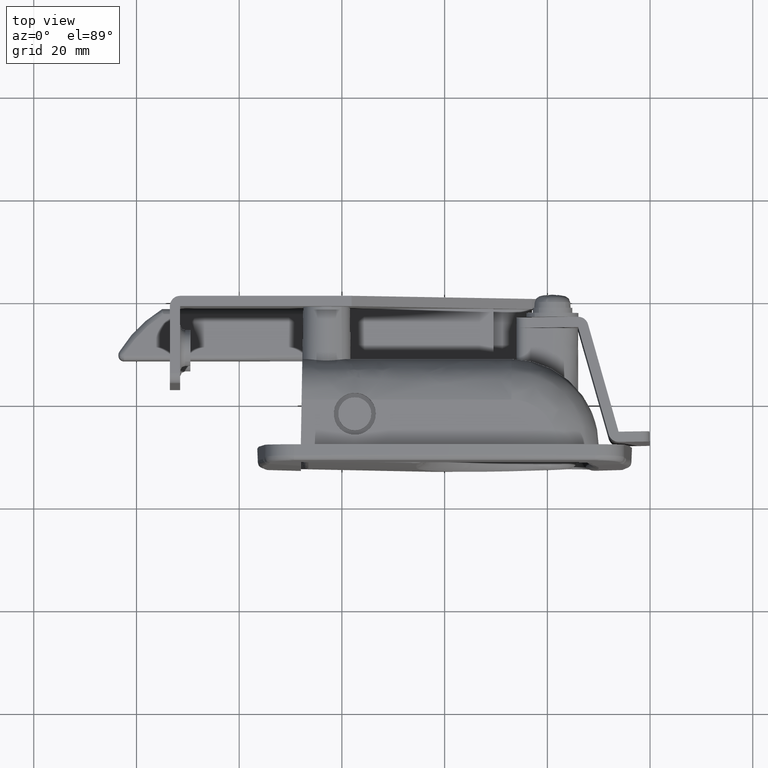
[diagram: clean part render]
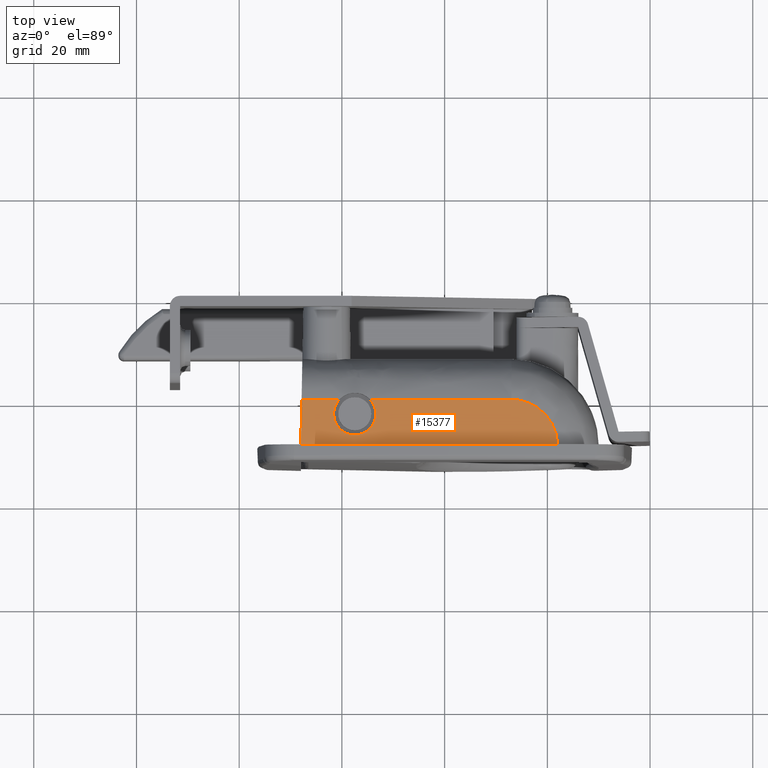
[diagram: same view with one face highlighted and labeled with its STEP entity id]
A machine part, top view. The second image highlights one B-rep face of the part: STEP entity #15377.
In plain terms, the highlighted face is a freeform B-spline surface patch.
Its self-contained STEP definition (entity closure, byte-faithful):
#6827=CARTESIAN_POINT('',(-20.326029361731511,-25.970447448892401,40.500200000000007));
#6828=VERTEX_POINT('',#6827);
#6834=CARTESIAN_POINT('',(-17.500002151720921,-27.099999999999440,40.500200000000000));
#6835=VERTEX_POINT('',#6834);
#6836=CARTESIAN_POINT('',(-17.500002151720921,-27.099999999999440,40.500200000000000));
#6837=CARTESIAN_POINT('',(-17.922265957206989,-27.100228568379201,40.500200000000198));
#6838=CARTESIAN_POINT('',(-18.620417617979410,-26.991112572591192,40.500199999999722));
#6839=CARTESIAN_POINT('',(-19.578508037157061,-26.574733155548870,40.500200000000333));
#6840=CARTESIAN_POINT('',(-20.079002488104621,-26.205574168201910,40.500199999999758));
#6841=CARTESIAN_POINT('',(-20.326029361731511,-25.970447448892401,40.500200000000007));
#6842=B_SPLINE_CURVE_WITH_KNOTS('',3,(#6836,#6837,#6838,#6839,#6840,#6841),.UNSPECIFIED.,.F.,.U.,(4,1,1,4),(0.000000031369566,1.266708007544761,2.094915085020616,3.118019090877381),.UNSPECIFIED.);
#6843=EDGE_CURVE('',#6835,#6828,#6842,.T.);
#6845=CARTESIAN_POINT('',(-14.505004173625521,-20.199999999999999,40.500200000000000));
#6846=VERTEX_POINT('',#6845);
#6847=CARTESIAN_POINT('',(-14.505004173625521,-20.199999999999999,40.500200000000000));
#6848=CARTESIAN_POINT('',(-14.284783077416010,-20.435436207263781,40.500200000000028));
#6849=CARTESIAN_POINT('',(-13.989136208284060,-20.837923815210281,40.500200000000000));
#6850=CARTESIAN_POINT('',(-13.663311704471450,-21.508389943553389,40.500199999999950));
#6851=CARTESIAN_POINT('',(-13.429115911695069,-22.270052519667750,40.500200000000092));
#6852=CARTESIAN_POINT('',(-13.368490080570361,-23.118837200554321,40.500199999999900));
#6853=CARTESIAN_POINT('',(-13.495630952483349,-23.980365566867739,40.500200000000312));
#6854=CARTESIAN_POINT('',(-13.720335066192829,-24.640989928963691,40.500199999999211));
#6855=CARTESIAN_POINT('',(-14.054255188366040,-25.251851624704361,40.500200000001072));
#6856=CARTESIAN_POINT('',(-14.448056419369770,-25.765082850201530,40.500199999998827));
#6857=CARTESIAN_POINT('',(-15.010793404145090,-26.292606951737870,40.500200000001492));
#6858=CARTESIAN_POINT('',(-15.669362839930020,-26.699442272363079,40.500199999999403));
#6859=CARTESIAN_POINT('',(-16.532951461362391,-27.018449465768882,40.500200000000277));
#6860=CARTESIAN_POINT('',(-17.128029962880230,-27.100106948618059,40.500199999999943));
#6861=CARTESIAN_POINT('',(-17.500002151720921,-27.099999999999440,40.500200000000000));
#6862=B_SPLINE_CURVE_WITH_KNOTS('',3,(#6847,#6848,#6849,#6850,#6851,#6852,#6853,#6854,#6855,#6856,#6857,#6858,#6859,#6860,#6861),.UNSPECIFIED.,.F.,.U.,(4,1,1,1,1,1,1,1,1,1,1,1,4),(0.000000122102445,0.967119125250209,1.487897052604674,2.231861406102832,3.347821474963162,4.017367441213487,4.835687376180398,5.430869252170472,6.100407406194471,6.769980215627577,7.737147280910370,8.406724187100361,9.522621303841754),.UNSPECIFIED.);
#6863=EDGE_CURVE('',#6846,#6835,#6862,.T.);
#6865=CARTESIAN_POINT('',(-20.494995826374449,-20.199999999999999,40.500200000000000));
#6866=VERTEX_POINT('',#6865);
#6903=CARTESIAN_POINT('',(-21.568398165385702,-23.508071223241739,40.500200000000007));
#6904=VERTEX_POINT('',#6903);
#6905=CARTESIAN_POINT('',(-21.568398165385702,-23.508071223241739,40.500200000000007));
#6906=CARTESIAN_POINT('',(-21.612554603408160,-23.155391518258661,40.500200000000092));
#6907=CARTESIAN_POINT('',(-21.608542895482170,-22.495145874601359,40.500199999999907));
#6908=CARTESIAN_POINT('',(-21.398301469278898,-21.655407231732500,40.500200000000142));
#6909=CARTESIAN_POINT('',(-21.046283830062009,-20.888126534100639,40.500199999999722));
#6910=CARTESIAN_POINT('',(-20.725020731173061,-20.445907883642288,40.500200000000262));
#6911=CARTESIAN_POINT('',(-20.494995826374449,-20.199999999999999,40.500200000000000));
#6912=B_SPLINE_CURVE_WITH_KNOTS('',3,(#6905,#6906,#6907,#6908,#6909,#6910,#6911),.UNSPECIFIED.,.F.,.U.,(4,1,1,1,4),(0.000000043603685,1.066270523485401,1.964172299174437,2.581484066441391,3.591632255522183),.UNSPECIFIED.);
#6913=EDGE_CURVE('',#6904,#6866,#6912,.T.);
#6947=CARTESIAN_POINT('',(-20.326029361731511,-25.970447448892401,40.500200000000007));
#6948=CARTESIAN_POINT('',(-20.602103974462530,-25.707986403872610,40.500200000000028));
#6949=CARTESIAN_POINT('',(-21.024999837250689,-25.174875217527362,40.500200000000007));
#6950=CARTESIAN_POINT('',(-21.413275508056870,-24.315493018282190,40.500199999999992));
#6951=CARTESIAN_POINT('',(-21.535743198067440,-23.769749830687271,40.500200000000049));
#6952=CARTESIAN_POINT('',(-21.568398165385702,-23.508071223241739,40.500200000000007));
#6953=B_SPLINE_CURVE_WITH_KNOTS('',3,(#6947,#6948,#6949,#6950,#6951,#6952),.UNSPECIFIED.,.F.,.U.,(4,1,1,4),(0.000000012296932,1.142755339688921,2.021797210257278,2.812935278260444),.UNSPECIFIED.);
#6954=EDGE_CURVE('',#6828,#6904,#6953,.T.);
#14302=CARTESIAN_POINT('',(21.999715115965451,-28.997212692888301,40.500200000000000));
#14303=VERTEX_POINT('',#14302);
#14338=CARTESIAN_POINT('',(13.002000000000001,-20.199999999999999,40.500200000000000));
#14339=VERTEX_POINT('',#14338);
#14355=CARTESIAN_POINT('',(21.999715115965451,-28.997212692888301,40.500200000000000));
#14356=CARTESIAN_POINT('',(21.984328161287969,-28.307907163933081,40.500200000000042));
#14357=CARTESIAN_POINT('',(21.838952891975161,-27.258659969866411,40.500199999999943));
#14358=CARTESIAN_POINT('',(21.369022209164079,-25.805898751146270,40.500200000000071));
#14359=CARTESIAN_POINT('',(20.765001491500719,-24.561569035824711,40.500200000000000));
#14360=CARTESIAN_POINT('',(19.768268291173118,-23.168956665855870,40.500199999999872));
#14361=CARTESIAN_POINT('',(18.478094870518142,-21.981729476119000,40.500200000000227));
#14362=CARTESIAN_POINT('',(16.826863914358380,-20.982191482372809,40.500199999999587));
#14363=CARTESIAN_POINT('',(15.034090013911721,-20.350673141361430,40.500200000000227));
#14364=CARTESIAN_POINT('',(13.655167302522360,-20.199915723755790,40.500199999999928));
#14365=CARTESIAN_POINT('',(13.002000000000001,-20.199999999999999,40.500200000000000));
#14366=B_SPLINE_CURVE_WITH_KNOTS('',3,(#14355,#14356,#14357,#14358,#14359,#14360,#14361,#14362,#14363,#14364,#14365),.UNSPECIFIED.,.F.,.U.,(4,1,1,1,1,1,1,1,4),(0.000000068209710,2.068393113035912,3.157019429623679,4.572252575473460,6.205187828377694,8.273556860666481,9.797658171387049,11.974932727073419,13.934447413180781),.UNSPECIFIED.);
#14367=EDGE_CURVE('',#14303,#14339,#14366,.T.);
#14526=CARTESIAN_POINT('',(-14.360276684275300,-29.0,40.500200000000000));
#14527=VERTEX_POINT('',#14526);
#14565=CARTESIAN_POINT('',(-14.360276684275300,-29.0,40.500200000000000));
#14566=CARTESIAN_POINT('',(21.999715115965451,-28.997212692888301,40.500200000000000));
#14567=QUASI_UNIFORM_CURVE('',1,(#14565,#14566),.UNSPECIFIED.,.F.,.U.);
#14568=EDGE_CURVE('',#14527,#14303,#14567,.T.);
#14871=CARTESIAN_POINT('',(-28.0,-29.0,40.500200000000000));
#14872=VERTEX_POINT('',#14871);
#14873=CARTESIAN_POINT('',(-14.360276684275300,-29.0,40.500200000000000));
#14874=CARTESIAN_POINT('',(-28.0,-29.0,40.500200000000000));
#14875=QUASI_UNIFORM_CURVE('',1,(#14873,#14874),.UNSPECIFIED.,.F.,.U.);
#14876=EDGE_CURVE('',#14527,#14872,#14875,.T.);
#15171=CARTESIAN_POINT('',(-27.846162962963000,-20.199999999999999,40.500200000000000));
#15172=VERTEX_POINT('',#15171);
#15198=CARTESIAN_POINT('',(-27.846162962963000,-20.199999999999999,40.500200000000000));
#15199=CARTESIAN_POINT('',(-28.0,-29.0,40.500200000000000));
#15200=QUASI_UNIFORM_CURVE('',1,(#15198,#15199),.UNSPECIFIED.,.F.,.U.);
#15201=EDGE_CURVE('',#15172,#14872,#15200,.T.);
#15352=CARTESIAN_POINT('',(-30.497485673133319,-29.439559920064330,40.500200000000000));
#15353=CARTESIAN_POINT('',(24.497202130195639,-29.439559920064330,40.500200000000000));
#15354=CARTESIAN_POINT('',(-30.497485673133319,-19.760441102751379,40.500200000000000));
#15355=CARTESIAN_POINT('',(24.497202130195639,-19.760441102751379,40.500200000000000));
#15356=B_SPLINE_SURFACE_WITH_KNOTS('',1,1,((#15352,#15354),(#15353,#15355)),.UNSPECIFIED.,.F.,.F.,.U.,(2,2),(2,2),(0.0,54.994687803328972),(0.0,9.679118817312958),.UNSPECIFIED.);
#15357=CARTESIAN_POINT('',(13.002000000000001,-20.199999999999999,40.500200000000000));
#15358=CARTESIAN_POINT('',(-14.505004173625521,-20.199999999999999,40.500200000000000));
#15359=QUASI_UNIFORM_CURVE('',1,(#15357,#15358),.UNSPECIFIED.,.F.,.U.);
#15360=EDGE_CURVE('',#14339,#6846,#15359,.T.);
#15361=ORIENTED_EDGE('',*,*,#15360,.T.);
#15362=ORIENTED_EDGE('',*,*,#6863,.T.);
#15363=ORIENTED_EDGE('',*,*,#6843,.T.);
#15364=ORIENTED_EDGE('',*,*,#6954,.T.);
#15365=ORIENTED_EDGE('',*,*,#6913,.T.);
#15366=CARTESIAN_POINT('',(-20.494995826374449,-20.199999999999999,40.500200000000000));
#15367=CARTESIAN_POINT('',(-27.846162962963000,-20.199999999999999,40.500200000000000));
#15368=QUASI_UNIFORM_CURVE('',1,(#15366,#15367),.UNSPECIFIED.,.F.,.U.);
#15369=EDGE_CURVE('',#6866,#15172,#15368,.T.);
#15370=ORIENTED_EDGE('',*,*,#15369,.T.);
#15371=ORIENTED_EDGE('',*,*,#15201,.T.);
#15372=ORIENTED_EDGE('',*,*,#14876,.F.);
#15373=ORIENTED_EDGE('',*,*,#14568,.T.);
#15374=ORIENTED_EDGE('',*,*,#14367,.T.);
#15375=EDGE_LOOP('',(#15361,#15362,#15363,#15364,#15365,#15370,#15371,#15372,#15373,#15374));
#15376=FACE_OUTER_BOUND('',#15375,.T.);
#15377=ADVANCED_FACE('',(#15376),#15356,.T.);